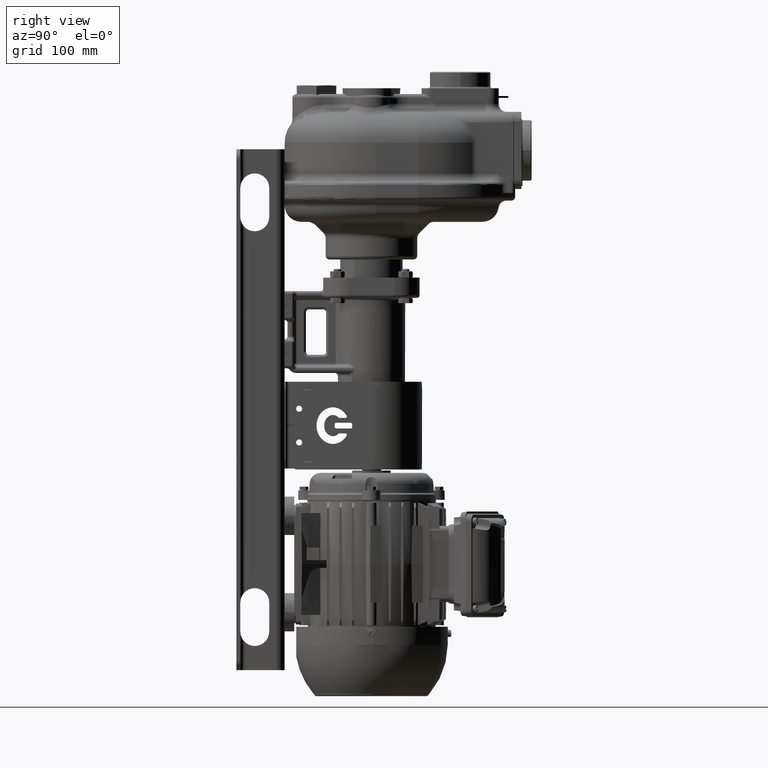
[diagram: clean part render]
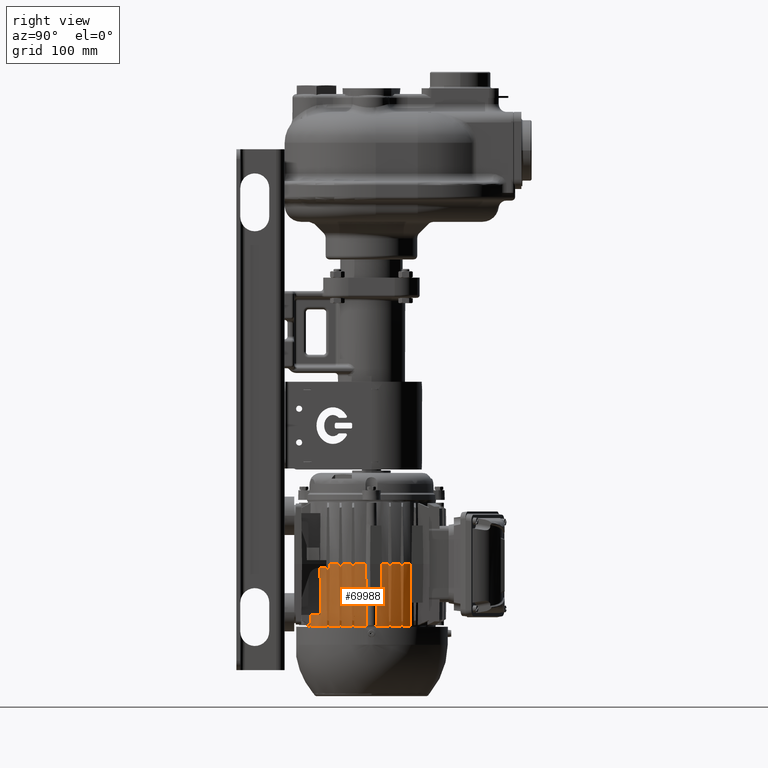
[diagram: same view with one face highlighted and labeled with its STEP entity id]
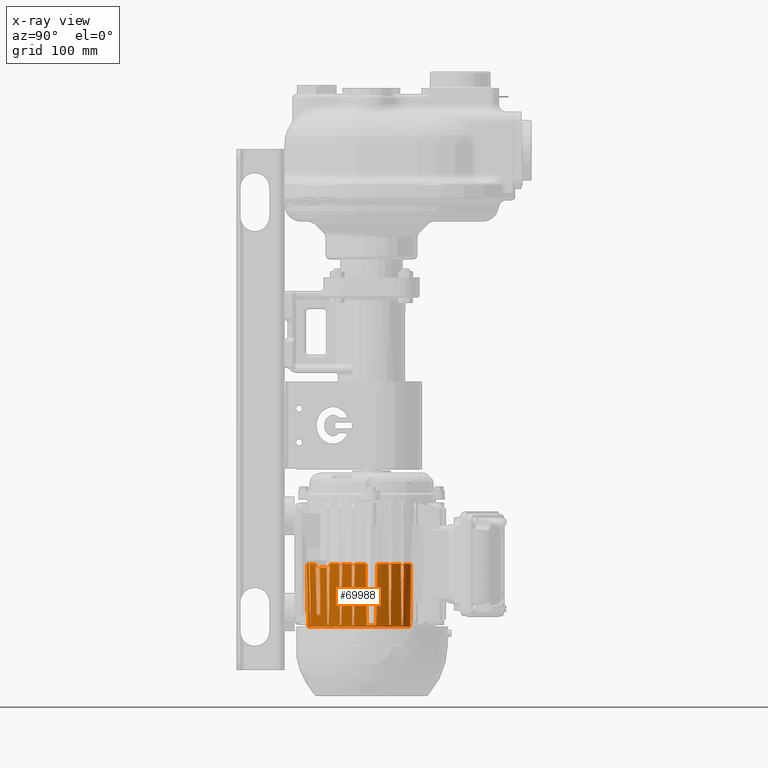
[diagram: x-ray of the same camera — body ghosted, the highlighted face saturated]
A machine part, right view. The second image highlights one B-rep face of the part: STEP entity #69988.
The next image is the same camera in x-ray: the body ghosted, the highlighted face saturated — about 2% of this face is hidden behind the body in this view.
In plain terms, the highlighted conical surface has half-angle 1 deg.
Its self-contained STEP definition (entity closure, byte-faithful):
#9934=CARTESIAN_POINT('',(0.E0,9.E1,-3.2075E2));
#9935=DIRECTION('',(0.E0,0.E0,1.E0));
#9936=DIRECTION('',(5.187048557473E-1,-8.549533745323E-1,0.E0));
#9937=AXIS2_PLACEMENT_3D('',#9934,#9935,#9936);
#9943=CARTESIAN_POINT('',(0.E0,9.E1,-3.315E2));
#9944=DIRECTION('',(0.E0,0.E0,1.E0));
#9945=DIRECTION('',(9.969384629122E-1,-7.819016029039E-2,0.E0));
#9946=AXIS2_PLACEMENT_3D('',#9943,#9944,#9945);
#9948=CARTESIAN_POINT('',(6.628909810208E1,9.547637131661E1,-3.08E2));
#9949=CARTESIAN_POINT('',(6.624598012181E1,9.544202316134E1,-3.106238559003E2));
#9950=CARTESIAN_POINT('',(6.615984119432E1,9.537343808578E1,-3.158630704610E2));
#9951=CARTESIAN_POINT('',(6.603092534715E1,9.527089493119E1,-3.236963429952E2));
#9952=CARTESIAN_POINT('',(6.594517491460E1,9.520275429263E1,-3.289016070095E2));
#9953=CARTESIAN_POINT('',(6.590234830580E1,9.516873946511E1,-3.315E2));
#9955=CARTESIAN_POINT('',(6.667100927619E1,9.851944627858E1,-2.68E2));
#9956=CARTESIAN_POINT('',(6.660276555248E1,9.843550176501E1,-2.724877225495E2));
#9957=CARTESIAN_POINT('',(6.646647636621E1,9.826807434887E1,-2.814343111637E2));
#9958=CARTESIAN_POINT('',(6.626264785405E1,9.801832634453E1,-2.947672700557E2));
#9959=CARTESIAN_POINT('',(6.612715823400E1,9.785274423374E1,-3.035986694015E2));
#9960=CARTESIAN_POINT('',(6.605951419161E1,9.777018370134E1,-3.08E2));
#9962=CARTESIAN_POINT('',(0.E0,9.E1,-2.68E2));
#9963=DIRECTION('',(0.E0,0.E0,-1.E0));
#9964=DIRECTION('',(9.656021840751E-1,2.600238875745E-1,0.E0));
#9965=AXIS2_PLACEMENT_3D('',#9962,#9963,#9964);
#9967=CARTESIAN_POINT('',(6.354351506649E1,1.082224332314E2,-3.315E2));
#9968=CARTESIAN_POINT('',(6.369299634637E1,1.081409662303E2,-3.245545971141E2));
#9969=CARTESIAN_POINT('',(6.399287682552E1,1.079771283590E2,-3.105903742950E2));
#9970=CARTESIAN_POINT('',(6.444539769895E1,1.077286755116E2,-2.894252391550E2));
#9971=CARTESIAN_POINT('',(6.474892545567E1,1.075612078915E2,-2.751663800774E2));
#9972=CARTESIAN_POINT('',(6.490114224180E1,1.074770185818E2,-2.68E2));
#9974=CARTESIAN_POINT('',(6.391372656011E1,1.108E2,-2.68E2));
#9975=CARTESIAN_POINT('',(6.381279082128E1,1.107062621320E2,-2.751606366073E2));
#9976=CARTESIAN_POINT('',(6.361179710924E1,1.105197492050E2,-2.894083608395E2));
#9977=CARTESIAN_POINT('',(6.331695882790E1,1.102465740373E2,-3.102762144472E2));
#9978=CARTESIAN_POINT('',(6.311683462293E1,1.100614418083E2,-3.244184671432E2));
#9979=CARTESIAN_POINT('',(6.301654405037E1,1.099687394651E2,-3.315E2));
#9981=CARTESIAN_POINT('',(0.E0,9.E1,-2.68E2));
#9982=DIRECTION('',(0.E0,0.E0,-1.E0));
#9983=DIRECTION('',(8.933723979381E-1,4.493169912237E-1,0.E0));
#9984=AXIS2_PLACEMENT_3D('',#9981,#9982,#9983);
#9986=CARTESIAN_POINT('',(5.836862384444E1,1.210312605349E2,-3.315E2));
#9987=CARTESIAN_POINT('',(5.855328701157E1,1.209408174765E2,-3.245910539247E2));
#9988=CARTESIAN_POINT('',(5.892379923791E1,1.207586522301E2,-3.106754490556E2));
#9989=CARTESIAN_POINT('',(5.948301094940E1,1.204815949693E2,-2.895110423306E2));
#9990=CARTESIAN_POINT('',(5.985818939452E1,1.202942944860E2,-2.752031566616E2));
#9991=CARTESIAN_POINT('',(6.004635245208E1,1.202E2,-2.68E2));
#9993=CARTESIAN_POINT('',(5.821296841942E1,1.235984337522E2,-2.68E2));
#9994=CARTESIAN_POINT('',(5.812096017601E1,1.235085875067E2,-2.751383381418E2));
#9995=CARTESIAN_POINT('',(5.793760176208E1,1.233295919250E2,-2.893598140621E2));
#9996=CARTESIAN_POINT('',(5.766455236860E1,1.230632014190E2,-3.105254575988E2));
#9997=CARTESIAN_POINT('',(5.748382092459E1,1.228869852205E2,-3.245267782842E2));
#9998=CARTESIAN_POINT('',(5.739378291127E1,1.227992235123E2,-3.315E2));
#10000=CARTESIAN_POINT('',(0.E0,9.E1,-2.68E2));
#10001=DIRECTION('',(0.E0,0.E0,-1.E0));
#10002=DIRECTION('',(7.953107629766E-1,6.062019385432E-1,0.E0));
#10003=AXIS2_PLACEMENT_3D('',#10000,#10001,#10002);
#10005=CARTESIAN_POINT('',(5.253845024705E1,1.300759993508E2,-3.33E2));
#10006=CARTESIAN_POINT('',(5.263952309723E1,1.301497162328E2,
-3.258347057834E2));
#10007=CARTESIAN_POINT('',(5.284220338046E1,1.302975408279E2,
-3.114661681764E2));
#10008=CARTESIAN_POINT('',(5.314782432504E1,1.305204478532E2,
-2.897997434643E2));
#10009=CARTESIAN_POINT('',(5.335264510421E1,1.306698373399E2,
-2.752792563483E2));
#10010=CARTESIAN_POINT('',(5.345532332636E1,1.307447278905E2,-2.68E2));
#10012=CARTESIAN_POINT('',(0.E0,9.E1,-3.33E2));
#10013=DIRECTION('',(0.E0,0.E0,-1.E0));
#10014=DIRECTION('',(7.950908729454E-1,6.064903162944E-1,0.E0));
#10015=AXIS2_PLACEMENT_3D('',#10012,#10013,#10014);
#10017=CARTESIAN_POINT('',(-5.433131284705E1,1.295690900466E2,-2.68E2));
#10018=CARTESIAN_POINT('',(-5.422464598631E1,1.294986267993E2,
-2.753162697599E2));
#10019=CARTESIAN_POINT('',(-5.401222062102E1,1.293583097622E2,
-2.898861008802E2));
#10020=CARTESIAN_POINT('',(-5.369631958381E1,1.291496703320E2,
-3.115519090743E2));
#10021=CARTESIAN_POINT('',(-5.348751990725E1,1.290117857446E2,
-3.258714487920E2));
#10022=CARTESIAN_POINT('',(-5.338357231393E1,1.289431468339E2,-3.33E2));
#10024=CARTESIAN_POINT('',(0.E0,9.E1,-2.68E2));
#10025=DIRECTION('',(0.E0,0.E0,-1.E0));
#10026=DIRECTION('',(-8.643574262411E-1,5.028779570650E-1,0.E0));
#10027=AXIS2_PLACEMENT_3D('',#10024,#10025,#10026);
#10029=CARTESIAN_POINT('',(-5.729657579611E1,1.229687394651E2,-3.315E2));
#10030=CARTESIAN_POINT('',(-5.738447867781E1,1.230600226699E2,
-3.245268751344E2));
#10031=CARTESIAN_POINT('',(-5.756091186255E1,1.232433083081E2,
-3.105256835290E2));
#10032=CARTESIAN_POINT('',(-5.782742986949E1,1.235203818213E2,
-2.893600352781E2));
#10033=CARTESIAN_POINT('',(-5.800637707427E1,1.237065527941E2,
-2.751384329257E2));
#10034=CARTESIAN_POINT('',(-5.809616547415E1,1.238E2,-2.68E2));
#10036=CARTESIAN_POINT('',(0.E0,9.E1,-3.315E2));
#10037=DIRECTION('',(0.E0,0.E0,-1.E0));
#10038=DIRECTION('',(-8.829719673684E-1,4.694257181296E-1,0.E0));
#10039=AXIS2_PLACEMENT_3D('',#10036,#10037,#10038);
#10041=CARTESIAN_POINT('',(-6.004635245208E1,1.202E2,-2.68E2));
#10042=CARTESIAN_POINT('',(-5.985818938151E1,1.202942944925E2,
-2.752031571595E2));
#10043=CARTESIAN_POINT('',(-5.948301091886E1,1.204815949846E2,
-2.895110434922E2));
#10044=CARTESIAN_POINT('',(-5.892379920728E1,1.207586522452E2,
-3.106754502092E2));
#10045=CARTESIAN_POINT('',(-5.855328699836E1,1.209408174829E2,
-3.245910544190E2));
#10046=CARTESIAN_POINT('',(-5.836862384444E1,1.210312605349E2,-3.315E2));
#10048=CARTESIAN_POINT('',(0.E0,9.E1,-2.68E2));
#10049=DIRECTION('',(0.E0,0.E0,-1.E0));
#10050=DIRECTION('',(-9.509113680756E-1,3.094633581938E-1,0.E0));
#10051=AXIS2_PLACEMENT_3D('',#10048,#10049,#10050);
#10053=CARTESIAN_POINT('',(-6.301654405037E1,1.099687394651E2,-3.315E2));
#10054=CARTESIAN_POINT('',(-6.311683718830E1,1.100614441795E2,
-3.244182860021E2));
#10055=CARTESIAN_POINT('',(-6.331696466693E1,1.102465794461E2,
-3.102758012654E2));
#10056=CARTESIAN_POINT('',(-6.361179149489E1,1.105197440022E2,
-2.894087582822E2));
#10057=CARTESIAN_POINT('',(-6.381278836301E1,1.107062598491E2,
-2.751608110033E2));
#10058=CARTESIAN_POINT('',(-6.391372656011E1,1.108E2,-2.68E2));
#10060=CARTESIAN_POINT('',(0.E0,9.E1,-3.315E2));
#10061=DIRECTION('',(0.E0,0.E0,-1.E0));
#10062=DIRECTION('',(-9.620798164991E-1,2.727680822329E-1,0.E0));
#10063=AXIS2_PLACEMENT_3D('',#10060,#10061,#10062);
#10065=CARTESIAN_POINT('',(-6.497510633158E1,1.072E2,-2.68E2));
#10066=CARTESIAN_POINT('',(-6.482074584908E1,1.072938911196E2,
-2.751723435024E2));
#10067=CARTESIAN_POINT('',(-6.451291738496E1,1.074806538794E2,
-2.894391524609E2));
#10068=CARTESIAN_POINT('',(-6.405391294743E1,1.077577192074E2,
-3.106041754432E2));
#10069=CARTESIAN_POINT('',(-6.374968609262E1,1.079404176518E2,
-3.245605113116E2));
#10070=CARTESIAN_POINT('',(-6.359802688292E1,1.080312605349E2,-3.315E2));
#10072=CARTESIAN_POINT('',(0.E0,9.E1,-2.68E2));
#10073=DIRECTION('',(0.E0,0.E0,-1.E0));
#10074=DIRECTION('',(-9.960076178565E-1,8.926827640207E-2,0.E0));
#10075=AXIS2_PLACEMENT_3D('',#10072,#10073,#10074);
#10077=CARTESIAN_POINT('',(-6.590234830580E1,9.516873946511E1,-3.315E2));
#10078=CARTESIAN_POINT('',(-6.601712027063E1,9.525989654472E1,
-3.245365098402E2));
#10079=CARTESIAN_POINT('',(-6.624737018951E1,9.544301398796E1,
-3.105481666461E2));
#10080=CARTESIAN_POINT('',(-6.659483475209E1,9.572008515892E1,
-2.893826973162E2));
#10081=CARTESIAN_POINT('',(-6.682790174238E1,9.590642564116E1,
-2.751481461433E2));
#10082=CARTESIAN_POINT('',(-6.694478652442E1,9.6E1,-2.68E2));
#10084=CARTESIAN_POINT('',(0.E0,9.E1,-3.315E2));
#10085=DIRECTION('',(0.E0,0.E0,1.E0));
#10086=DIRECTION('',(-9.969384629122E-1,7.819016029038E-2,0.E0));
#10087=AXIS2_PLACEMENT_3D('',#10084,#10085,#10086);
#10089=CARTESIAN_POINT('',(-6.694478652442E1,8.4E1,-2.68E2));
#10090=CARTESIAN_POINT('',(-6.682790174097E1,8.409357435997E1,
-2.751481462295E2));
#10091=CARTESIAN_POINT('',(-6.659483474880E1,8.427991484371E1,
-2.893826975173E2));
#10092=CARTESIAN_POINT('',(-6.624737018622E1,8.455698601467E1,
-3.105481668465E2));
#10093=CARTESIAN_POINT('',(-6.601712026922E1,8.474010345641E1,
-3.245365099261E2));
#10094=CARTESIAN_POINT('',(-6.590234830580E1,8.483126053489E1,-3.315E2));
#10096=CARTESIAN_POINT('',(0.E0,9.E1,-2.68E2));
#10097=DIRECTION('',(0.E0,0.E0,-1.E0));
#10098=DIRECTION('',(-9.667026252102E-1,-2.559023923526E-1,0.E0));
#10099=AXIS2_PLACEMENT_3D('',#10096,#10097,#10098);
#10101=CARTESIAN_POINT('',(-6.359802688292E1,7.196873946511E1,-3.315E2));
#10102=CARTESIAN_POINT('',(-6.374968609808E1,7.205958235152E1,
-3.245605110617E2));
#10103=CARTESIAN_POINT('',(-6.405391296012E1,7.224228080028E1,
-3.106041748600E2));
#10104=CARTESIAN_POINT('',(-6.451291739763E1,7.251934612827E1,
-2.894391518748E2));
#10105=CARTESIAN_POINT('',(-6.482074585449E1,7.270610888366E1,
-2.751723432512E2));
#10106=CARTESIAN_POINT('',(-6.497510633158E1,7.28E1,-2.68E2));
#10108=CARTESIAN_POINT('',(-6.391372656011E1,6.92E1,-2.68E2));
#10109=CARTESIAN_POINT('',(-6.381279082128E1,6.929373786798E1,
-2.751606366075E2));
#10110=CARTESIAN_POINT('',(-6.361179710923E1,6.948025079500E1,
-2.894083608398E2));
#10111=CARTESIAN_POINT('',(-6.331695882789E1,6.975342596275E1,
-3.102762144475E2));
#10112=CARTESIAN_POINT('',(-6.311683462293E1,6.993855819173E1,
-3.244184671433E2));
#10113=CARTESIAN_POINT('',(-6.301654405037E1,7.003126053489E1,-3.315E2));
#10115=CARTESIAN_POINT('',(0.E0,9.E1,-2.68E2));
#10116=DIRECTION('',(0.E0,0.E0,-1.E0));
#10117=DIRECTION('',(-8.933723979381E-1,-4.493169912237E-1,0.E0));
#10118=AXIS2_PLACEMENT_3D('',#10115,#10116,#10117);
#10120=CARTESIAN_POINT('',(-5.836862384444E1,5.896873946511E1,-3.315E2));
#10121=CARTESIAN_POINT('',(-5.855328701157E1,5.905918252354E1,
-3.245910539247E2));
#10122=CARTESIAN_POINT('',(-5.892379923791E1,5.924134776995E1,
-3.106754490556E2));
#10123=CARTESIAN_POINT('',(-5.948301094940E1,5.951840503065E1,
-2.895110423306E2));
#10124=CARTESIAN_POINT('',(-5.985818939452E1,5.970570551403E1,
-2.752031566616E2));
#10125=CARTESIAN_POINT('',(-6.004635245208E1,5.98E1,-2.68E2));
#10127=CARTESIAN_POINT('',(-5.809616547415E1,5.62E1,-2.68E2));
#10128=CARTESIAN_POINT('',(-5.800637707408E1,5.629344720606E1,
-2.751384329408E2));
#10129=CARTESIAN_POINT('',(-5.782742986904E1,5.647961817921E1,
-2.893600353133E2));
#10130=CARTESIAN_POINT('',(-5.756091186211E1,5.675669169238E1,
-3.105256835640E2));
#10131=CARTESIAN_POINT('',(-5.738447867762E1,5.693997733027E1,
-3.245268751494E2));
#10132=CARTESIAN_POINT('',(-5.729657579611E1,5.703126053489E1,-3.315E2));
#10134=CARTESIAN_POINT('',(0.E0,9.E1,-2.68E2));
#10135=DIRECTION('',(0.E0,0.E0,-1.E0));
#10136=DIRECTION('',(-7.660914456474E-1,-6.427315900949E-1,0.E0));
#10137=AXIS2_PLACEMENT_3D('',#10134,#10135,#10136);
#10139=CARTESIAN_POINT('',(-4.930601865479E1,4.596873946511E1,-3.315E2));
#10140=CARTESIAN_POINT('',(-4.954598802135E1,4.605825677506E1,
-3.246617718595E2));
#10141=CARTESIAN_POINT('',(-5.002788419636E1,4.623918739568E1,
-3.108404800661E2));
#10142=CARTESIAN_POINT('',(-5.075629206071E1,4.651622116580E1,
-2.896778677867E2));
#10143=CARTESIAN_POINT('',(-5.124575551052E1,4.670476944635E1,
-2.752746628798E2));
#10144=CARTESIAN_POINT('',(-5.149140163950E1,4.68E1,-2.68E2));
#10146=CARTESIAN_POINT('',(-4.819628683111E1,4.325236286834E1,-2.72E2));
#10147=CARTESIAN_POINT('',(-4.811859725514E1,4.333988702680E1,
-2.786859712794E2));
#10148=CARTESIAN_POINT('',(-4.796379338612E1,4.351428188522E1,
-2.920079961384E2));
#10149=CARTESIAN_POINT('',(-4.773332382576E1,4.377390221790E1,
-3.118403957691E2));
#10150=CARTESIAN_POINT('',(-4.758081446614E1,4.394569096210E1,
-3.249633395381E2));
#10151=CARTESIAN_POINT('',(-4.750484577247E1,4.403126053489E1,-3.315E2));
#10153=CARTESIAN_POINT('',(-3.993471731134E1,3.708594720300E1,-3.2075E2));
#10154=CARTESIAN_POINT('',(-4.003250569274E1,3.704242411931E1,
-3.153849217451E2));
#10155=CARTESIAN_POINT('',(-4.022865666647E1,3.695521168358E1,
-3.046203787473E2));
#10156=CARTESIAN_POINT('',(-4.052459600069E1,3.682390067340E1,
-2.883708722574E2));
#10157=CARTESIAN_POINT('',(-4.072304700783E1,3.673602598085E1,
-2.774684715426E2));
#10158=CARTESIAN_POINT('',(-4.082256041567E1,3.669200620161E1,-2.72E2));
#10160=CARTESIAN_POINT('',(-3.418172766224E1,3.212760643602E1,-2.68E2));
#10161=CARTESIAN_POINT('',(-3.420493954397E1,3.226156837997E1,
-2.739318273052E2));
#10162=CARTESIAN_POINT('',(-3.425103163632E1,3.252874294872E1,
-2.857483284979E2));
#10163=CARTESIAN_POINT('',(-3.431917583815E1,3.292723138459E1,
-3.033308726292E2));
#10164=CARTESIAN_POINT('',(-3.436395113756E1,3.319140291314E1,
-3.149592588917E2));
#10165=CARTESIAN_POINT('',(-3.438617543049E1,3.332311256426E1,-3.2075E2));
#10167=CARTESIAN_POINT('',(0.E0,9.E1,-2.68E2));
#10168=DIRECTION('',(0.E0,0.E0,-1.E0));
#10169=DIRECTION('',(-3.094633581938E-1,-9.509113680756E-1,0.E0));
#10170=AXIS2_PLACEMENT_3D('',#10167,#10168,#10169);
#10172=CARTESIAN_POINT('',(-1.996873946511E1,2.698345594963E1,-3.315E2));
#10173=CARTESIAN_POINT('',(-2.006144417955E1,2.688316281169E1,
-3.244182860010E2));
#10174=CARTESIAN_POINT('',(-2.024657944613E1,2.668303533304E1,
-3.102758012629E2));
#10175=CARTESIAN_POINT('',(-2.051974400222E1,2.638820850507E1,
-2.894087582797E2));
#10176=CARTESIAN_POINT('',(-2.070625984907E1,2.618721163698E1,
-2.751608110022E2));
#10177=CARTESIAN_POINT('',(-2.08E1,2.608627343989E1,-2.68E2));
#10179=CARTESIAN_POINT('',(0.E0,9.E1,-3.315E2));
#10180=DIRECTION('',(0.E0,0.E0,-1.E0));
#10181=DIRECTION('',(-2.727680822329E-1,-9.620798164991E-1,0.E0));
#10182=AXIS2_PLACEMENT_3D('',#10179,#10180,#10181);
#10184=CARTESIAN_POINT('',(-1.803126053489E1,2.640197311708E1,-3.315E2));
#10185=CARTESIAN_POINT('',(-1.794041764848E1,2.625031390192E1,
-3.245605110617E2));
#10186=CARTESIAN_POINT('',(-1.775771919973E1,2.594608703988E1,
-3.106041748600E2));
#10187=CARTESIAN_POINT('',(-1.748065387173E1,2.548708260237E1,
-2.894391518748E2));
#10188=CARTESIAN_POINT('',(-1.729389111634E1,2.517925414551E1,
-2.751723432512E2));
#10189=CARTESIAN_POINT('',(-1.72E1,2.502489366842E1,-2.68E2));
#10191=CARTESIAN_POINT('',(0.E0,9.E1,-2.68E2));
#10192=DIRECTION('',(0.E0,0.E0,-1.E0));
#10193=DIRECTION('',(-8.926827640207E-2,-9.960076178565E-1,0.E0));
#10194=AXIS2_PLACEMENT_3D('',#10191,#10192,#10193);
#10196=CARTESIAN_POINT('',(-6.E0,2.305521347558E1,-2.68E2));
#10197=CARTESIAN_POINT('',(-5.906425640028E0,2.317209825903E1,
-2.751481462295E2));
#10198=CARTESIAN_POINT('',(-5.720085156291E0,2.340516525120E1,
-2.893826975173E2));
#10199=CARTESIAN_POINT('',(-5.443013985334E0,2.375262981378E1,
-3.105481668465E2));
#10200=CARTESIAN_POINT('',(-5.259896543594E0,2.398287973078E1,
-3.245365099261E2));
#10201=CARTESIAN_POINT('',(-5.168739465113E0,2.409765169420E1,-3.315E2));
#10203=CARTESIAN_POINT('',(5.168739465113E0,2.409765169420E1,-3.315E2));
#10204=CARTESIAN_POINT('',(5.259896544718E0,2.398287972937E1,
-3.245365098402E2));
#10205=CARTESIAN_POINT('',(5.443013987957E0,2.375262981049E1,
-3.105481666461E2));
#10206=CARTESIAN_POINT('',(5.720085158923E0,2.340516524791E1,
-2.893826973162E2));
#10207=CARTESIAN_POINT('',(5.906425641157E0,2.317209825762E1,
-2.751481461433E2));
#10208=CARTESIAN_POINT('',(6.E0,2.305521347558E1,-2.68E2));
#10210=CARTESIAN_POINT('',(0.E0,9.E1,-2.68E2));
#10211=DIRECTION('',(0.E0,0.E0,-1.E0));
#10212=DIRECTION('',(2.559023923526E-1,-9.667026252102E-1,0.E0));
#10213=AXIS2_PLACEMENT_3D('',#10210,#10211,#10212);
#10215=CARTESIAN_POINT('',(1.72E1,2.502489366842E1,-2.68E2));
#10216=CARTESIAN_POINT('',(1.729389111963E1,2.517925415092E1,
-2.751723435024E2));
#10217=CARTESIAN_POINT('',(1.748065387940E1,2.548708261503E1,
-2.894391524609E2));
#10218=CARTESIAN_POINT('',(1.775771920736E1,2.594608705257E1,
-3.106041754432E2));
#10219=CARTESIAN_POINT('',(1.794041765175E1,2.625031390738E1,
-3.245605113116E2));
#10220=CARTESIAN_POINT('',(1.803126053489E1,2.640197311708E1,-3.315E2));
#10222=CARTESIAN_POINT('',(2.08E1,2.608627343989E1,-2.68E2));
#10223=CARTESIAN_POINT('',(2.070626213204E1,2.618720917871E1,
-2.751606366066E2));
#10224=CARTESIAN_POINT('',(2.051974920502E1,2.638820289074E1,
-2.894083608378E2));
#10225=CARTESIAN_POINT('',(2.024657403728E1,2.668304117208E1,
-3.102762144456E2));
#10226=CARTESIAN_POINT('',(2.006144180828E1,2.688316537706E1,
-3.244184671425E2));
#10227=CARTESIAN_POINT('',(1.996873946511E1,2.698345594963E1,-3.315E2));
#10229=CARTESIAN_POINT('',(0.E0,9.E1,-2.68E2));
#10230=DIRECTION('',(0.E0,0.E0,-1.E0));
#10231=DIRECTION('',(5.085573188089E-1,-8.610281374531E-1,0.E0));
#10232=AXIS2_PLACEMENT_3D('',#10229,#10230,#10231);
#10234=CARTESIAN_POINT('',(3.438617543049E1,3.332311256426E1,-3.2075E2));
#10235=CARTESIAN_POINT('',(3.436395113723E1,3.319140291116E1,
-3.149592588050E2));
#10236=CARTESIAN_POINT('',(3.431917583737E1,3.292723138E1,-3.033308724268E2));
#10237=CARTESIAN_POINT('',(3.425103163553E1,3.252874294413E1,
-2.857483282947E2));
#10238=CARTESIAN_POINT('',(3.420493954363E1,3.226156837800E1,
-2.739318272182E2));
#10239=CARTESIAN_POINT('',(3.418172766224E1,3.212760643602E1,-2.68E2));
#10241=CARTESIAN_POINT('',(4.082256041567E1,3.669200620161E1,-2.72E2));
#10242=CARTESIAN_POINT('',(4.072304700737E1,3.673602598106E1,
-2.774684715681E2));
#10243=CARTESIAN_POINT('',(4.052459599961E1,3.682390067388E1,
-2.883708723169E2));
#10244=CARTESIAN_POINT('',(4.022865666538E1,3.695521168406E1,
-3.046203788067E2));
#10245=CARTESIAN_POINT('',(4.003250569228E1,3.704242411952E1,
-3.153849217705E2));
#10246=CARTESIAN_POINT('',(3.993471731134E1,3.708594720300E1,-3.2075E2));
#10248=CARTESIAN_POINT('',(4.750484577247E1,4.403126053489E1,-3.315E2));
#10249=CARTESIAN_POINT('',(4.758081446615E1,4.394569096209E1,
-3.249633395372E2));
#10250=CARTESIAN_POINT('',(4.773332382578E1,4.377390221787E1,
-3.118403957670E2));
#10251=CARTESIAN_POINT('',(4.796379338614E1,4.351428188519E1,
-2.920079961363E2));
#10252=CARTESIAN_POINT('',(4.811859725515E1,4.333988702678E1,
-2.786859712785E2));
#10253=CARTESIAN_POINT('',(4.819628683111E1,4.325236286834E1,-2.72E2));
#10255=CARTESIAN_POINT('',(0.E0,9.E1,-3.315E2));
#10256=DIRECTION('',(0.E0,0.E0,1.E0));
#10257=DIRECTION('',(7.186300510193E-1,-6.953925867969E-1,0.E0));
#10258=AXIS2_PLACEMENT_3D('',#10255,#10256,#10257);
#10260=CARTESIAN_POINT('',(4.930601865479E1,4.596873946511E1,-3.315E2));
#10261=CARTESIAN_POINT('',(4.954598802135E1,4.605825677506E1,
-3.246617718595E2));
#10262=CARTESIAN_POINT('',(5.002788419636E1,4.623918739568E1,
-3.108404800661E2));
#10263=CARTESIAN_POINT('',(5.075629206071E1,4.651622116580E1,
-2.896778677867E2));
#10264=CARTESIAN_POINT('',(5.124575551052E1,4.670476944635E1,
-2.752746628798E2));
#10265=CARTESIAN_POINT('',(5.149140163950E1,4.68E1,-2.68E2));
#10267=CARTESIAN_POINT('',(0.E0,9.E1,-2.68E2));
#10268=DIRECTION('',(0.E0,0.E0,-1.E0));
#10269=DIRECTION('',(8.643574262411E-1,-5.028779570650E-1,0.E0));
#10270=AXIS2_PLACEMENT_3D('',#10267,#10268,#10269);
#10272=CARTESIAN_POINT('',(5.729657579611E1,5.703126053489E1,-3.315E2));
#10273=CARTESIAN_POINT('',(5.738447867781E1,5.693997733007E1,
-3.245268751344E2));
#10274=CARTESIAN_POINT('',(5.756091186255E1,5.675669169192E1,
-3.105256835290E2));
#10275=CARTESIAN_POINT('',(5.782742986949E1,5.647961817875E1,
-2.893600352781E2));
#10276=CARTESIAN_POINT('',(5.800637707427E1,5.629344720586E1,
-2.751384329257E2));
#10277=CARTESIAN_POINT('',(5.809616547415E1,5.62E1,-2.68E2));
#10279=CARTESIAN_POINT('',(0.E0,9.E1,-3.315E2));
#10280=DIRECTION('',(0.E0,0.E0,-1.E0));
#10281=DIRECTION('',(8.829719673685E-1,-4.694257181296E-1,0.E0));
#10282=AXIS2_PLACEMENT_3D('',#10279,#10280,#10281);
#10284=CARTESIAN_POINT('',(5.836862384444E1,5.896873946511E1,-3.315E2));
#10285=CARTESIAN_POINT('',(5.855328701157E1,5.905918252354E1,
-3.245910539247E2));
#10286=CARTESIAN_POINT('',(5.892379923791E1,5.924134776995E1,
-3.106754490556E2));
#10287=CARTESIAN_POINT('',(5.948301094940E1,5.951840503065E1,
-2.895110423306E2));
#10288=CARTESIAN_POINT('',(5.985818939452E1,5.970570551403E1,
-2.752031566616E2));
#10289=CARTESIAN_POINT('',(6.004635245208E1,5.98E1,-2.68E2));
#10291=CARTESIAN_POINT('',(0.E0,9.E1,-2.68E2));
#10292=DIRECTION('',(0.E0,0.E0,-1.E0));
#10293=DIRECTION('',(9.509113680756E-1,-3.094633581938E-1,0.E0));
#10294=AXIS2_PLACEMENT_3D('',#10291,#10292,#10293);
#10296=CARTESIAN_POINT('',(6.301654405037E1,7.003126053489E1,-3.315E2));
#10297=CARTESIAN_POINT('',(6.311683718831E1,6.993855582046E1,
-3.244182860015E2));
#10298=CARTESIAN_POINT('',(6.331696466695E1,6.975342055388E1,
-3.102758012640E2));
#10299=CARTESIAN_POINT('',(6.361179149491E1,6.948025599779E1,
-2.894087582808E2));
#10300=CARTESIAN_POINT('',(6.381278836302E1,6.929374015093E1,
-2.751608110027E2));
#10301=CARTESIAN_POINT('',(6.391372656011E1,6.92E1,-2.68E2));
#10303=CARTESIAN_POINT('',(0.E0,9.E1,-3.315E2));
#10304=DIRECTION('',(0.E0,0.E0,-1.E0));
#10305=DIRECTION('',(9.620798164991E-1,-2.727680822329E-1,0.E0));
#10306=AXIS2_PLACEMENT_3D('',#10303,#10304,#10305);
#10308=CARTESIAN_POINT('',(6.359802688292E1,7.196873946511E1,-3.315E2));
#10309=CARTESIAN_POINT('',(6.374968609808E1,7.205958235152E1,
-3.245605110617E2));
#10310=CARTESIAN_POINT('',(6.405391296012E1,7.224228080028E1,
-3.106041748600E2));
#10311=CARTESIAN_POINT('',(6.451291739763E1,7.251934612827E1,
-2.894391518748E2));
#10312=CARTESIAN_POINT('',(6.482074585449E1,7.270610888366E1,
-2.751723432512E2));
#10313=CARTESIAN_POINT('',(6.497510633158E1,7.28E1,-2.68E2));
#10315=CARTESIAN_POINT('',(0.E0,9.E1,-2.68E2));
#10316=DIRECTION('',(0.E0,0.E0,-1.E0));
#10317=DIRECTION('',(9.960076178565E-1,-8.926827640206E-2,0.E0));
#10318=AXIS2_PLACEMENT_3D('',#10315,#10316,#10317);
#10320=CARTESIAN_POINT('',(6.694478652442E1,8.4E1,-2.68E2));
#10321=CARTESIAN_POINT('',(6.682790174097E1,8.409357435997E1,
-2.751481462295E2));
#10322=CARTESIAN_POINT('',(6.659483474880E1,8.427991484371E1,
-2.893826975173E2));
#10323=CARTESIAN_POINT('',(6.624737018622E1,8.455698601467E1,
-3.105481668465E2));
#10324=CARTESIAN_POINT('',(6.601712026922E1,8.474010345641E1,
-3.245365099261E2));
#10325=CARTESIAN_POINT('',(6.590234830580E1,8.483126053489E1,-3.315E2));
#10451=CARTESIAN_POINT('',(6.391372656011E1,6.92E1,-2.68E2));
#31926=CARTESIAN_POINT('',(5.739378291127E1,1.227992235123E2,-3.315E2));
#31935=CARTESIAN_POINT('',(0.E0,9.E1,-3.315E2));
#31936=DIRECTION('',(0.E0,0.E0,1.E0));
#31937=DIRECTION('',(8.829719673684E-1,4.694257181296E-1,0.E0));
#31938=AXIS2_PLACEMENT_3D('',#31935,#31936,#31937);
#32037=CARTESIAN_POINT('',(0.E0,9.E1,-3.315E2));
#32038=DIRECTION('',(0.E0,0.E0,1.E0));
#32039=DIRECTION('',(9.612551884262E-1,2.756600491978E-1,0.E0));
#32040=AXIS2_PLACEMENT_3D('',#32037,#32038,#32039);
#32081=CARTESIAN_POINT('',(0.E0,9.E1,-3.08E2));
#32082=DIRECTION('',(0.E0,0.E0,1.E0));
#32083=DIRECTION('',(9.966048775475E-1,8.233297060382E-2,0.E0));
#32084=AXIS2_PLACEMENT_3D('',#32081,#32082,#32083);
#32226=CARTESIAN_POINT('',(6.004635245208E1,5.98E1,-2.68E2));
#32318=CARTESIAN_POINT('',(5.149140163950E1,4.68E1,-2.68E2));
#32528=CARTESIAN_POINT('',(0.E0,9.E1,-2.72E2));
#32529=DIRECTION('',(0.E0,0.E0,1.E0));
#32530=DIRECTION('',(6.079915093543E-1,-7.939435273073E-1,0.E0));
#32531=AXIS2_PLACEMENT_3D('',#32528,#32529,#32530);
#32671=CARTESIAN_POINT('',(0.E0,9.E1,-3.315E2));
#32672=DIRECTION('',(0.E0,0.E0,1.E0));
#32673=DIRECTION('',(2.727680822329E-1,-9.620798164991E-1,0.E0));
#32674=AXIS2_PLACEMENT_3D('',#32671,#32672,#32673);
#32749=CARTESIAN_POINT('',(0.E0,9.E1,-3.315E2));
#32750=DIRECTION('',(0.E0,0.E0,1.E0));
#32751=DIRECTION('',(-7.819016029038E-2,-9.969384629122E-1,0.E0));
#32752=AXIS2_PLACEMENT_3D('',#32749,#32750,#32751);
#32857=CARTESIAN_POINT('',(-3.418172766224E1,3.212760643602E1,-2.68E2));
#33538=CARTESIAN_POINT('',(0.E0,9.E1,-3.2075E2));
#33539=DIRECTION('',(0.E0,0.E0,1.E0));
#33540=DIRECTION('',(-6.024028995070E-1,-7.981921740192E-1,0.E0));
#33541=AXIS2_PLACEMENT_3D('',#33538,#33539,#33540);
#33555=CARTESIAN_POINT('',(0.E0,9.E1,-2.72E2));
#33556=DIRECTION('',(0.E0,0.E0,1.E0));
#33557=DIRECTION('',(-7.178122312110E-1,-6.962367418658E-1,0.E0));
#33558=AXIS2_PLACEMENT_3D('',#33555,#33556,#33557);
#33682=CARTESIAN_POINT('',(-4.750484577247E1,4.403126053489E1,-3.315E2));
#33694=CARTESIAN_POINT('',(0.E0,9.E1,-3.315E2));
#33695=DIRECTION('',(0.E0,0.E0,1.E0));
#33696=DIRECTION('',(-7.458773126253E-1,-6.660833540263E-1,0.E0));
#33697=AXIS2_PLACEMENT_3D('',#33694,#33695,#33696);
#35264=CARTESIAN_POINT('',(-5.729657579611E1,5.703126053489E1,-3.315E2));
#35274=CARTESIAN_POINT('',(0.E0,9.E1,-3.315E2));
#35275=DIRECTION('',(0.E0,0.E0,1.E0));
#35276=DIRECTION('',(-8.829719673685E-1,-4.694257181296E-1,0.E0));
#35277=AXIS2_PLACEMENT_3D('',#35274,#35275,#35276);
#35286=CARTESIAN_POINT('',(-5.836862384444E1,5.896873946511E1,-3.315E2));
#35353=CARTESIAN_POINT('',(-6.301654405037E1,7.003126053489E1,-3.315E2));
#35361=CARTESIAN_POINT('',(0.E0,9.E1,-3.315E2));
#35362=DIRECTION('',(0.E0,0.E0,1.E0));
#35363=DIRECTION('',(-9.620798164991E-1,-2.727680822329E-1,0.E0));
#35364=AXIS2_PLACEMENT_3D('',#35361,#35362,#35363);
#35372=CARTESIAN_POINT('',(-6.359802688292E1,7.196873946511E1,-3.315E2));
#35528=CARTESIAN_POINT('',(-6.359802688292E1,1.080312605349E2,-3.315E2));
#35542=CARTESIAN_POINT('',(-6.301654405037E1,1.099687394651E2,-3.315E2));
#35617=CARTESIAN_POINT('',(-5.836862384444E1,1.210312605349E2,-3.315E2));
#35634=CARTESIAN_POINT('',(-5.729657579611E1,1.229687394651E2,-3.315E2));
#53674=VERTEX_POINT('',#10272);
#53675=VERTEX_POINT('',#10277);
#53676=VERTEX_POINT('',#10320);
#53677=VERTEX_POINT('',#10325);
#53678=VERTEX_POINT('',#10308);
#53679=VERTEX_POINT('',#10313);
#53680=CARTESIAN_POINT('',(6.301654405037E1,7.003126053489E1,-3.315E2));
#53681=VERTEX_POINT('',#53680);
#53682=CARTESIAN_POINT('',(4.750484577247E1,4.403126053489E1,-3.315E2));
#53683=CARTESIAN_POINT('',(4.930601865479E1,4.596873946511E1,-3.315E2));
#53684=VERTEX_POINT('',#53682);
#53685=VERTEX_POINT('',#53683);
#53686=CARTESIAN_POINT('',(1.803126053489E1,2.640197311708E1,-3.315E2));
#53687=CARTESIAN_POINT('',(1.996873946511E1,2.698345594963E1,-3.315E2));
#53688=VERTEX_POINT('',#53686);
#53689=VERTEX_POINT('',#53687);
#53690=VERTEX_POINT('',#10222);
#53691=VERTEX_POINT('',#10215);
#53692=VERTEX_POINT('',#10203);
#53693=VERTEX_POINT('',#10208);
#53694=VERTEX_POINT('',#10196);
#53695=VERTEX_POINT('',#10201);
#53696=VERTEX_POINT('',#10172);
#53697=VERTEX_POINT('',#10177);
#53698=CARTESIAN_POINT('',(-1.803126053489E1,2.640197311708E1,-3.315E2));
#53699=VERTEX_POINT('',#53698);
#53700=VERTEX_POINT('',#10189);
#53702=VERTEX_POINT('',#32318);
#53712=VERTEX_POINT('',#32226);
#53716=VERTEX_POINT('',#10451);
#53722=VERTEX_POINT('',#10284);
#53813=CARTESIAN_POINT('',(6.590234830580E1,9.516873946511E1,-3.315E2));
#53815=VERTEX_POINT('',#53813);
#55423=VERTEX_POINT('',#9986);
#55424=VERTEX_POINT('',#9991);
#55434=CARTESIAN_POINT('',(5.821296841942E1,1.235984337522E2,-2.68E2));
#55436=VERTEX_POINT('',#55434);
#55468=VERTEX_POINT('',#35286);
#55474=CARTESIAN_POINT('',(-6.391372656011E1,6.92E1,-2.68E2));
#55475=VERTEX_POINT('',#55474);
#55477=VERTEX_POINT('',#35353);
#55478=VERTEX_POINT('',#35372);
#55484=CARTESIAN_POINT('',(-6.004635245208E1,5.98E1,-2.68E2));
#55485=VERTEX_POINT('',#55484);
#55486=VERTEX_POINT('',#35264);
#55487=CARTESIAN_POINT('',(-5.809616547415E1,5.62E1,-2.68E2));
#55488=VERTEX_POINT('',#55487);
#55504=CARTESIAN_POINT('',(-6.694478652442E1,9.6E1,-2.68E2));
#55505=VERTEX_POINT('',#55504);
#55508=CARTESIAN_POINT('',(-6.694478652442E1,8.4E1,-2.68E2));
#55509=VERTEX_POINT('',#55508);
#55521=CARTESIAN_POINT('',(-6.590234830580E1,8.483126053489E1,-3.315E2));
#55522=VERTEX_POINT('',#55521);
#55523=CARTESIAN_POINT('',(-6.497510633158E1,7.28E1,-2.68E2));
#55524=VERTEX_POINT('',#55523);
#55525=CARTESIAN_POINT('',(-6.590234830580E1,9.516873946511E1,-3.315E2));
#55526=VERTEX_POINT('',#55525);
#55529=VERTEX_POINT('',#35634);
#55536=VERTEX_POINT('',#35528);
#55538=VERTEX_POINT('',#35542);
#55539=CARTESIAN_POINT('',(-6.497510633158E1,1.072E2,-2.68E2));
#55540=VERTEX_POINT('',#55539);
#55541=CARTESIAN_POINT('',(-5.809616547415E1,1.238E2,-2.68E2));
#55542=VERTEX_POINT('',#55541);
#55543=CARTESIAN_POINT('',(-6.391372656011E1,1.108E2,-2.68E2));
#55544=VERTEX_POINT('',#55543);
#55550=VERTEX_POINT('',#35617);
#55553=CARTESIAN_POINT('',(-6.004635245208E1,1.202E2,-2.68E2));
#55554=VERTEX_POINT('',#55553);
#55576=VERTEX_POINT('',#10253);
#55577=CARTESIAN_POINT('',(4.082256041567E1,3.669200620161E1,-2.72E2));
#55578=VERTEX_POINT('',#55577);
#55579=VERTEX_POINT('',#10246);
#55580=CARTESIAN_POINT('',(3.438617543049E1,3.332311256426E1,-3.2075E2));
#55581=VERTEX_POINT('',#55580);
#55582=VERTEX_POINT('',#10239);
#55585=CARTESIAN_POINT('',(5.345532332636E1,1.307447278905E2,-2.68E2));
#55586=VERTEX_POINT('',#55585);
#55609=VERTEX_POINT('',#9955);
#55610=VERTEX_POINT('',#9960);
#55611=CARTESIAN_POINT('',(6.628909810208E1,9.547637131661E1,-3.08E2));
#55612=VERTEX_POINT('',#55611);
#55705=VERTEX_POINT('',#33682);
#55707=CARTESIAN_POINT('',(-4.819628683111E1,4.325236286834E1,-2.72E2));
#55708=VERTEX_POINT('',#55707);
#55710=CARTESIAN_POINT('',(-3.993471731134E1,3.708594720300E1,-3.2075E2));
#55712=VERTEX_POINT('',#55710);
#55731=CARTESIAN_POINT('',(-4.082256041567E1,3.669200620161E1,-2.72E2));
#55732=VERTEX_POINT('',#55731);
#55868=CARTESIAN_POINT('',(6.490114224180E1,1.074770185818E2,-2.68E2));
#55869=VERTEX_POINT('',#55868);
#55870=CARTESIAN_POINT('',(6.391372656011E1,1.108E2,-2.68E2));
#55871=VERTEX_POINT('',#55870);
#55876=VERTEX_POINT('',#32857);
#55878=CARTESIAN_POINT('',(-5.149140163950E1,4.68E1,-2.68E2));
#55879=VERTEX_POINT('',#55878);
#55886=CARTESIAN_POINT('',(-5.433131284705E1,1.295690900466E2,-2.68E2));
#55887=VERTEX_POINT('',#55886);
#55888=VERTEX_POINT('',#10139);
#55889=VERTEX_POINT('',#10165);
#56010=CARTESIAN_POINT('',(6.354351506649E1,1.082224332314E2,-3.315E2));
#56011=CARTESIAN_POINT('',(6.301654405037E1,1.099687394651E2,-3.315E2));
#56012=VERTEX_POINT('',#56010);
#56013=VERTEX_POINT('',#56011);
#56021=VERTEX_POINT('',#31926);
#56263=CARTESIAN_POINT('',(5.253845024705E1,1.300759993508E2,-3.33E2));
#56265=VERTEX_POINT('',#56263);
#56269=CARTESIAN_POINT('',(-5.338357231393E1,1.289431468339E2,-3.33E2));
#56270=VERTEX_POINT('',#56269);
#69836=CARTESIAN_POINT('',(0.E0,9.E1,-3.005E2));
#69837=DIRECTION('',(0.E0,0.E0,1.E0));
#69838=DIRECTION('',(1.E0,0.E0,0.E0));
#69839=AXIS2_PLACEMENT_3D('',#69836,#69837,#69838);
#69840=CONICAL_SURFACE('',#69839,6.664583740234E1,1.E0);
#69842=ORIENTED_EDGE('',*,*,#69841,.T.);
#69844=ORIENTED_EDGE('',*,*,#69843,.F.);
#69846=ORIENTED_EDGE('',*,*,#69845,.T.);
#69848=ORIENTED_EDGE('',*,*,#69847,.F.);
#69850=ORIENTED_EDGE('',*,*,#69849,.F.);
#69852=ORIENTED_EDGE('',*,*,#69851,.F.);
#69854=ORIENTED_EDGE('',*,*,#69853,.T.);
#69856=ORIENTED_EDGE('',*,*,#69855,.F.);
#69858=ORIENTED_EDGE('',*,*,#69857,.F.);
#69860=ORIENTED_EDGE('',*,*,#69859,.F.);
#69862=ORIENTED_EDGE('',*,*,#69861,.T.);
#69864=ORIENTED_EDGE('',*,*,#69863,.F.);
#69866=ORIENTED_EDGE('',*,*,#69865,.F.);
#69868=ORIENTED_EDGE('',*,*,#69867,.F.);
#69870=ORIENTED_EDGE('',*,*,#69869,.T.);
#69872=ORIENTED_EDGE('',*,*,#69871,.F.);
#69874=ORIENTED_EDGE('',*,*,#69873,.F.);
#69876=ORIENTED_EDGE('',*,*,#69875,.F.);
#69878=ORIENTED_EDGE('',*,*,#69877,.F.);
#69880=ORIENTED_EDGE('',*,*,#69879,.F.);
#69882=ORIENTED_EDGE('',*,*,#69881,.F.);
#69884=ORIENTED_EDGE('',*,*,#69883,.F.);
#69886=ORIENTED_EDGE('',*,*,#69885,.F.);
#69888=ORIENTED_EDGE('',*,*,#69887,.F.);
#69890=ORIENTED_EDGE('',*,*,#69889,.F.);
#69892=ORIENTED_EDGE('',*,*,#69891,.F.);
#69894=ORIENTED_EDGE('',*,*,#69893,.T.);
#69896=ORIENTED_EDGE('',*,*,#69895,.F.);
#69898=ORIENTED_EDGE('',*,*,#69897,.F.);
#69900=ORIENTED_EDGE('',*,*,#69899,.F.);
#69902=ORIENTED_EDGE('',*,*,#69901,.T.);
#69904=ORIENTED_EDGE('',*,*,#69903,.F.);
#69906=ORIENTED_EDGE('',*,*,#69905,.F.);
#69908=ORIENTED_EDGE('',*,*,#69907,.F.);
#69910=ORIENTED_EDGE('',*,*,#69909,.T.);
#69912=ORIENTED_EDGE('',*,*,#69911,.F.);
#69914=ORIENTED_EDGE('',*,*,#69913,.F.);
#69916=ORIENTED_EDGE('',*,*,#69915,.F.);
#69918=ORIENTED_EDGE('',*,*,#69917,.T.);
#69920=ORIENTED_EDGE('',*,*,#69919,.F.);
#69922=ORIENTED_EDGE('',*,*,#69921,.T.);
#69924=ORIENTED_EDGE('',*,*,#69923,.F.);
#69926=ORIENTED_EDGE('',*,*,#69925,.T.);
#69928=ORIENTED_EDGE('',*,*,#69927,.F.);
#69930=ORIENTED_EDGE('',*,*,#69929,.F.);
#69932=ORIENTED_EDGE('',*,*,#69931,.F.);
#69934=ORIENTED_EDGE('',*,*,#69933,.F.);
#69936=ORIENTED_EDGE('',*,*,#69935,.T.);
#69938=ORIENTED_EDGE('',*,*,#69937,.F.);
#69940=ORIENTED_EDGE('',*,*,#69939,.T.);
#69942=ORIENTED_EDGE('',*,*,#69941,.T.);
#69944=ORIENTED_EDGE('',*,*,#69943,.T.);
#69946=ORIENTED_EDGE('',*,*,#69945,.F.);
#69948=ORIENTED_EDGE('',*,*,#69947,.T.);
#69950=ORIENTED_EDGE('',*,*,#69949,.T.);
#69952=ORIENTED_EDGE('',*,*,#69951,.F.);
#69954=ORIENTED_EDGE('',*,*,#69953,.F.);
#69955=ORIENTED_EDGE('',*,*,#69799,.F.);
#69956=ORIENTED_EDGE('',*,*,#69817,.T.);
#69957=ORIENTED_EDGE('',*,*,#69827,.F.);
#69959=ORIENTED_EDGE('',*,*,#69958,.T.);
#69961=ORIENTED_EDGE('',*,*,#69960,.F.);
#69963=ORIENTED_EDGE('',*,*,#69962,.T.);
#69965=ORIENTED_EDGE('',*,*,#69964,.T.);
#69967=ORIENTED_EDGE('',*,*,#69966,.F.);
#69969=ORIENTED_EDGE('',*,*,#69968,.F.);
#69971=ORIENTED_EDGE('',*,*,#69970,.F.);
#69973=ORIENTED_EDGE('',*,*,#69972,.T.);
#69975=ORIENTED_EDGE('',*,*,#69974,.F.);
#69977=ORIENTED_EDGE('',*,*,#69976,.F.);
#69979=ORIENTED_EDGE('',*,*,#69978,.F.);
#69981=ORIENTED_EDGE('',*,*,#69980,.T.);
#69983=ORIENTED_EDGE('',*,*,#69982,.F.);
#69985=ORIENTED_EDGE('',*,*,#69984,.T.);
#69986=EDGE_LOOP('',(#69842,#69844,#69846,#69848,#69850,#69852,#69854,#69856,
#69858,#69860,#69862,#69864,#69866,#69868,#69870,#69872,#69874,#69876,#69878,
#69880,#69882,#69884,#69886,#69888,#69890,#69892,#69894,#69896,#69898,#69900,
#69902,#69904,#69906,#69908,#69910,#69912,#69914,#69916,#69918,#69920,#69922,
#69924,#69926,#69928,#69930,#69932,#69934,#69936,#69938,#69940,#69942,#69944,
#69946,#69948,#69950,#69952,#69954,#69955,#69956,#69957,#69959,#69961,#69963,
#69965,#69967,#69969,#69971,#69973,#69975,#69977,#69979,#69981,#69983,#69985));
#69987=FACE_OUTER_BOUND('',#69986,.F.);
#69988=ADVANCED_FACE('',(#69987),#69840,.T.);
#9938=CIRCLE('',#9937,6.629237233755E1);
#9947=CIRCLE('',#9946,6.610473038957E1);
#9954=B_SPLINE_CURVE_WITH_KNOTS('',3,(#9948,#9949,#9950,#9951,#9952,#9953),
.UNSPECIFIED.,.F.,.F.,(4,1,1,4),(0.E0,3.333333333333E-1,6.666666666667E-1,1.E0),
.UNSPECIFIED.);
#9961=B_SPLINE_CURVE_WITH_KNOTS('',3,(#9955,#9956,#9957,#9958,#9959,#9960),
.UNSPECIFIED.,.F.,.F.,(4,1,1,4),(0.E0,3.333333333333E-1,6.666666666667E-1,1.E0),
.UNSPECIFIED.);
#9966=CIRCLE('',#9965,6.721312701251E1);
#9973=B_SPLINE_CURVE_WITH_KNOTS('',3,(#9967,#9968,#9969,#9970,#9971,#9972),
.UNSPECIFIED.,.F.,.F.,(4,1,1,4),(0.E0,3.333333333333E-1,6.666666666667E-1,1.E0),
.UNSPECIFIED.);
#9980=B_SPLINE_CURVE_WITH_KNOTS('',3,(#9974,#9975,#9976,#9977,#9978,#9979),
.UNSPECIFIED.,.F.,.F.,(4,1,1,4),(0.E0,3.333333333333E-1,6.666666666667E-1,1.E0),
.UNSPECIFIED.);
#9985=CIRCLE('',#9984,6.721312701251E1);
#9992=B_SPLINE_CURVE_WITH_KNOTS('',3,(#9986,#9987,#9988,#9989,#9990,#9991),
.UNSPECIFIED.,.F.,.F.,(4,1,1,4),(0.E0,3.333333333333E-1,6.666666666667E-1,1.E0),
.UNSPECIFIED.);
#9999=B_SPLINE_CURVE_WITH_KNOTS('',3,(#9993,#9994,#9995,#9996,#9997,#9998),
.UNSPECIFIED.,.F.,.F.,(4,1,1,4),(0.E0,3.333333333333E-1,6.666666666667E-1,1.E0),
.UNSPECIFIED.);
#10004=CIRCLE('',#10003,6.721312701251E1);
#10011=B_SPLINE_CURVE_WITH_KNOTS('',3,(#10005,#10006,#10007,#10008,#10009,
#10010),.UNSPECIFIED.,.F.,.F.,(4,1,1,4),(0.E0,3.333333333333E-1,
6.666666666667E-1,1.E0),.UNSPECIFIED.);
#10016=CIRCLE('',#10015,6.607854779218E1);
#10023=B_SPLINE_CURVE_WITH_KNOTS('',3,(#10017,#10018,#10019,#10020,#10021,
#10022),.UNSPECIFIED.,.F.,.F.,(4,1,1,4),(0.E0,3.333333333333E-1,
6.666666666667E-1,1.E0),.UNSPECIFIED.);
#10028=CIRCLE('',#10027,6.721312701251E1);
#10035=B_SPLINE_CURVE_WITH_KNOTS('',3,(#10029,#10030,#10031,#10032,#10033,
#10034),.UNSPECIFIED.,.F.,.F.,(4,1,1,4),(0.E0,3.333333333333E-1,
6.666666666667E-1,1.E0),.UNSPECIFIED.);
#10040=CIRCLE('',#10039,6.610473038957E1);
#10047=B_SPLINE_CURVE_WITH_KNOTS('',3,(#10041,#10042,#10043,#10044,#10045,
#10046),.UNSPECIFIED.,.F.,.F.,(4,1,1,4),(0.E0,3.333333333333E-1,
6.666666666667E-1,1.E0),.UNSPECIFIED.);
#10052=CIRCLE('',#10051,6.721312701251E1);
#10059=B_SPLINE_CURVE_WITH_KNOTS('',3,(#10053,#10054,#10055,#10056,#10057,
#10058),.UNSPECIFIED.,.F.,.F.,(4,1,1,4),(0.E0,3.333333333333E-1,
6.666666666667E-1,1.E0),.UNSPECIFIED.);
#10064=CIRCLE('',#10063,6.610473038957E1);
#10071=B_SPLINE_CURVE_WITH_KNOTS('',3,(#10065,#10066,#10067,#10068,#10069,
#10070),.UNSPECIFIED.,.F.,.F.,(4,1,1,4),(0.E0,3.333333333333E-1,
6.666666666667E-1,1.E0),.UNSPECIFIED.);
#10076=CIRCLE('',#10075,6.721312701251E1);
#10083=B_SPLINE_CURVE_WITH_KNOTS('',3,(#10077,#10078,#10079,#10080,#10081,
#10082),.UNSPECIFIED.,.F.,.F.,(4,1,1,4),(0.E0,3.333333333333E-1,
6.666666666667E-1,1.E0),.UNSPECIFIED.);
#10088=CIRCLE('',#10087,6.610473038957E1);
#10095=B_SPLINE_CURVE_WITH_KNOTS('',3,(#10089,#10090,#10091,#10092,#10093,
#10094),.UNSPECIFIED.,.F.,.F.,(4,1,1,4),(0.E0,3.333333333333E-1,
6.666666666667E-1,1.E0),.UNSPECIFIED.);
#10100=CIRCLE('',#10099,6.721312701251E1);
#10107=B_SPLINE_CURVE_WITH_KNOTS('',3,(#10101,#10102,#10103,#10104,#10105,
#10106),.UNSPECIFIED.,.F.,.F.,(4,1,1,4),(0.E0,3.333333333333E-1,
6.666666666667E-1,1.E0),.UNSPECIFIED.);
#10114=B_SPLINE_CURVE_WITH_KNOTS('',3,(#10108,#10109,#10110,#10111,#10112,
#10113),.UNSPECIFIED.,.F.,.F.,(4,1,1,4),(0.E0,3.333333333333E-1,
6.666666666667E-1,1.E0),.UNSPECIFIED.);
#10119=CIRCLE('',#10118,6.721312701251E1);
#10126=B_SPLINE_CURVE_WITH_KNOTS('',3,(#10120,#10121,#10122,#10123,#10124,
#10125),.UNSPECIFIED.,.F.,.F.,(4,1,1,4),(0.E0,3.333333333333E-1,
6.666666666667E-1,1.E0),.UNSPECIFIED.);
#10133=B_SPLINE_CURVE_WITH_KNOTS('',3,(#10127,#10128,#10129,#10130,#10131,
#10132),.UNSPECIFIED.,.F.,.F.,(4,1,1,4),(0.E0,3.333333333333E-1,
6.666666666667E-1,1.E0),.UNSPECIFIED.);
#10138=CIRCLE('',#10137,6.721312701251E1);
#10145=B_SPLINE_CURVE_WITH_KNOTS('',3,(#10139,#10140,#10141,#10142,#10143,
#10144),.UNSPECIFIED.,.F.,.F.,(4,1,1,4),(0.E0,3.333333333333E-1,
6.666666666667E-1,1.E0),.UNSPECIFIED.);
#10152=B_SPLINE_CURVE_WITH_KNOTS('',3,(#10146,#10147,#10148,#10149,#10150,
#10151),.UNSPECIFIED.,.F.,.F.,(4,1,1,4),(0.E0,3.333333333333E-1,
6.666666666667E-1,1.E0),.UNSPECIFIED.);
#10159=B_SPLINE_CURVE_WITH_KNOTS('',3,(#10153,#10154,#10155,#10156,#10157,
#10158),.UNSPECIFIED.,.F.,.F.,(4,1,1,4),(0.E0,3.333333333333E-1,
6.666666666667E-1,1.E0),.UNSPECIFIED.);
#10166=B_SPLINE_CURVE_WITH_KNOTS('',3,(#10160,#10161,#10162,#10163,#10164,
#10165),.UNSPECIFIED.,.F.,.F.,(4,1,1,4),(0.E0,3.333333333333E-1,
6.666666666667E-1,1.E0),.UNSPECIFIED.);
#10171=CIRCLE('',#10170,6.721312701251E1);
#10178=B_SPLINE_CURVE_WITH_KNOTS('',3,(#10172,#10173,#10174,#10175,#10176,
#10177),.UNSPECIFIED.,.F.,.F.,(4,1,1,4),(0.E0,3.333333333333E-1,
6.666666666667E-1,1.E0),.UNSPECIFIED.);
#10183=CIRCLE('',#10182,6.610473038957E1);
#10190=B_SPLINE_CURVE_WITH_KNOTS('',3,(#10184,#10185,#10186,#10187,#10188,
#10189),.UNSPECIFIED.,.F.,.F.,(4,1,1,4),(0.E0,3.333333333333E-1,
6.666666666667E-1,1.E0),.UNSPECIFIED.);
#10195=CIRCLE('',#10194,6.721312701251E1);
#10202=B_SPLINE_CURVE_WITH_KNOTS('',3,(#10196,#10197,#10198,#10199,#10200,
#10201),.UNSPECIFIED.,.F.,.F.,(4,1,1,4),(0.E0,3.333333333333E-1,
6.666666666667E-1,1.E0),.UNSPECIFIED.);
#10209=B_SPLINE_CURVE_WITH_KNOTS('',3,(#10203,#10204,#10205,#10206,#10207,
#10208),.UNSPECIFIED.,.F.,.F.,(4,1,1,4),(0.E0,3.333333333333E-1,
6.666666666667E-1,1.E0),.UNSPECIFIED.);
#10214=CIRCLE('',#10213,6.721312701251E1);
#10221=B_SPLINE_CURVE_WITH_KNOTS('',3,(#10215,#10216,#10217,#10218,#10219,
#10220),.UNSPECIFIED.,.F.,.F.,(4,1,1,4),(0.E0,3.333333333333E-1,
6.666666666667E-1,1.E0),.UNSPECIFIED.);
#10228=B_SPLINE_CURVE_WITH_KNOTS('',3,(#10222,#10223,#10224,#10225,#10226,
#10227),.UNSPECIFIED.,.F.,.F.,(4,1,1,4),(0.E0,3.333333333333E-1,
6.666666666667E-1,1.E0),.UNSPECIFIED.);
#10233=CIRCLE('',#10232,6.721312701251E1);
#10240=B_SPLINE_CURVE_WITH_KNOTS('',3,(#10234,#10235,#10236,#10237,#10238,
#10239),.UNSPECIFIED.,.F.,.F.,(4,1,1,4),(0.E0,3.333333333333E-1,
6.666666666667E-1,1.E0),.UNSPECIFIED.);
#10247=B_SPLINE_CURVE_WITH_KNOTS('',3,(#10241,#10242,#10243,#10244,#10245,
#10246),.UNSPECIFIED.,.F.,.F.,(4,1,1,4),(0.E0,3.333333333333E-1,
6.666666666667E-1,1.E0),.UNSPECIFIED.);
#10254=B_SPLINE_CURVE_WITH_KNOTS('',3,(#10248,#10249,#10250,#10251,#10252,
#10253),.UNSPECIFIED.,.F.,.F.,(4,1,1,4),(0.E0,3.333333333333E-1,
6.666666666667E-1,1.E0),.UNSPECIFIED.);
#10259=CIRCLE('',#10258,6.610473038957E1);
#10266=B_SPLINE_CURVE_WITH_KNOTS('',3,(#10260,#10261,#10262,#10263,#10264,
#10265),.UNSPECIFIED.,.F.,.F.,(4,1,1,4),(0.E0,3.333333333333E-1,
6.666666666667E-1,1.E0),.UNSPECIFIED.);
#10271=CIRCLE('',#10270,6.721312701251E1);
#10278=B_SPLINE_CURVE_WITH_KNOTS('',3,(#10272,#10273,#10274,#10275,#10276,
#10277),.UNSPECIFIED.,.F.,.F.,(4,1,1,4),(0.E0,3.333333333333E-1,
6.666666666667E-1,1.E0),.UNSPECIFIED.);
#10283=CIRCLE('',#10282,6.610473038957E1);
#10290=B_SPLINE_CURVE_WITH_KNOTS('',3,(#10284,#10285,#10286,#10287,#10288,
#10289),.UNSPECIFIED.,.F.,.F.,(4,1,1,4),(0.E0,3.333333333333E-1,
6.666666666667E-1,1.E0),.UNSPECIFIED.);
#10295=CIRCLE('',#10294,6.721312701251E1);
#10302=B_SPLINE_CURVE_WITH_KNOTS('',3,(#10296,#10297,#10298,#10299,#10300,
#10301),.UNSPECIFIED.,.F.,.F.,(4,1,1,4),(0.E0,3.333333333333E-1,
6.666666666667E-1,1.E0),.UNSPECIFIED.);
#10307=CIRCLE('',#10306,6.610473038957E1);
#10314=B_SPLINE_CURVE_WITH_KNOTS('',3,(#10308,#10309,#10310,#10311,#10312,
#10313),.UNSPECIFIED.,.F.,.F.,(4,1,1,4),(0.E0,3.333333333333E-1,
6.666666666667E-1,1.E0),.UNSPECIFIED.);
#10319=CIRCLE('',#10318,6.721312701251E1);
#10326=B_SPLINE_CURVE_WITH_KNOTS('',3,(#10320,#10321,#10322,#10323,#10324,
#10325),.UNSPECIFIED.,.F.,.F.,(4,1,1,4),(0.E0,3.333333333333E-1,
6.666666666667E-1,1.E0),.UNSPECIFIED.);
#31939=CIRCLE('',#31938,6.610473038957E1);
#32041=CIRCLE('',#32040,6.610473038957E1);
#32085=CIRCLE('',#32084,6.651492441538E1);
#32532=CIRCLE('',#32531,6.714330675280E1);
#32675=CIRCLE('',#32674,6.610473038957E1);
#32753=CIRCLE('',#32752,6.610473038957E1);
#33542=CIRCLE('',#33541,6.629237233755E1);
#33559=CIRCLE('',#33558,6.714330675280E1);
#33698=CIRCLE('',#33697,6.610473038957E1);
#35278=CIRCLE('',#35277,6.610473038957E1);
#35365=CIRCLE('',#35364,6.610473038957E1);
#69799=EDGE_CURVE('',#55581,#55582,#10240,.T.);
#69817=EDGE_CURVE('',#55581,#55579,#9938,.T.);
#69827=EDGE_CURVE('',#55578,#55579,#10247,.T.);
#69841=EDGE_CURVE('',#53677,#53815,#9947,.T.);
#69843=EDGE_CURVE('',#55612,#53815,#9954,.T.);
#69845=EDGE_CURVE('',#55612,#55610,#32085,.T.);
#69847=EDGE_CURVE('',#55609,#55610,#9961,.T.);
#69849=EDGE_CURVE('',#55869,#55609,#9966,.T.);
#69851=EDGE_CURVE('',#56012,#55869,#9973,.T.);
#69853=EDGE_CURVE('',#56012,#56013,#32041,.T.);
#69855=EDGE_CURVE('',#55871,#56013,#9980,.T.);
#69857=EDGE_CURVE('',#55424,#55871,#9985,.T.);
#69859=EDGE_CURVE('',#55423,#55424,#9992,.T.);
#69861=EDGE_CURVE('',#55423,#56021,#31939,.T.);
#69863=EDGE_CURVE('',#55436,#56021,#9999,.T.);
#69865=EDGE_CURVE('',#55586,#55436,#10004,.T.);
#69867=EDGE_CURVE('',#56265,#55586,#10011,.T.);
#69869=EDGE_CURVE('',#56265,#56270,#10016,.T.);
#69871=EDGE_CURVE('',#55887,#56270,#10023,.T.);
#69873=EDGE_CURVE('',#55542,#55887,#10028,.T.);
#69875=EDGE_CURVE('',#55529,#55542,#10035,.T.);
#69877=EDGE_CURVE('',#55550,#55529,#10040,.T.);
#69879=EDGE_CURVE('',#55554,#55550,#10047,.T.);
#69881=EDGE_CURVE('',#55544,#55554,#10052,.T.);
#69883=EDGE_CURVE('',#55538,#55544,#10059,.T.);
#69885=EDGE_CURVE('',#55536,#55538,#10064,.T.);
#69887=EDGE_CURVE('',#55540,#55536,#10071,.T.);
#69889=EDGE_CURVE('',#55505,#55540,#10076,.T.);
#69891=EDGE_CURVE('',#55526,#55505,#10083,.T.);
#69893=EDGE_CURVE('',#55526,#55522,#10088,.T.);
#69895=EDGE_CURVE('',#55509,#55522,#10095,.T.);
#69897=EDGE_CURVE('',#55524,#55509,#10100,.T.);
#69899=EDGE_CURVE('',#55478,#55524,#10107,.T.);
#69901=EDGE_CURVE('',#55478,#55477,#35365,.T.);
#69903=EDGE_CURVE('',#55475,#55477,#10114,.T.);
#69905=EDGE_CURVE('',#55485,#55475,#10119,.T.);
#69907=EDGE_CURVE('',#55468,#55485,#10126,.T.);
#69909=EDGE_CURVE('',#55468,#55486,#35278,.T.);
#69911=EDGE_CURVE('',#55488,#55486,#10133,.T.);
#69913=EDGE_CURVE('',#55879,#55488,#10138,.T.);
#69915=EDGE_CURVE('',#55888,#55879,#10145,.T.);
#69917=EDGE_CURVE('',#55888,#55705,#33698,.T.);
#69919=EDGE_CURVE('',#55708,#55705,#10152,.T.);
#69921=EDGE_CURVE('',#55708,#55732,#33559,.T.);
#69923=EDGE_CURVE('',#55712,#55732,#10159,.T.);
#69925=EDGE_CURVE('',#55712,#55889,#33542,.T.);
#69927=EDGE_CURVE('',#55876,#55889,#10166,.T.);
#69929=EDGE_CURVE('',#53697,#55876,#10171,.T.);
#69931=EDGE_CURVE('',#53696,#53697,#10178,.T.);
#69933=EDGE_CURVE('',#53699,#53696,#10183,.T.);
#69935=EDGE_CURVE('',#53699,#53700,#10190,.T.);
#69937=EDGE_CURVE('',#53694,#53700,#10195,.T.);
#69939=EDGE_CURVE('',#53694,#53695,#10202,.T.);
#69941=EDGE_CURVE('',#53695,#53692,#32753,.T.);
#69943=EDGE_CURVE('',#53692,#53693,#10209,.T.);
#69945=EDGE_CURVE('',#53691,#53693,#10214,.T.);
#69947=EDGE_CURVE('',#53691,#53688,#10221,.T.);
#69949=EDGE_CURVE('',#53688,#53689,#32675,.T.);
#69951=EDGE_CURVE('',#53690,#53689,#10228,.T.);
#69953=EDGE_CURVE('',#55582,#53690,#10233,.T.);
#69958=EDGE_CURVE('',#55578,#55576,#32532,.T.);
#69960=EDGE_CURVE('',#53684,#55576,#10254,.T.);
#69962=EDGE_CURVE('',#53684,#53685,#10259,.T.);
#69964=EDGE_CURVE('',#53685,#53702,#10266,.T.);
#69966=EDGE_CURVE('',#53675,#53702,#10271,.T.);
#69968=EDGE_CURVE('',#53674,#53675,#10278,.T.);
#69970=EDGE_CURVE('',#53722,#53674,#10283,.T.);
#69972=EDGE_CURVE('',#53722,#53712,#10290,.T.);
#69974=EDGE_CURVE('',#53716,#53712,#10295,.T.);
#69976=EDGE_CURVE('',#53681,#53716,#10302,.T.);
#69978=EDGE_CURVE('',#53678,#53681,#10307,.T.);
#69980=EDGE_CURVE('',#53678,#53679,#10314,.T.);
#69982=EDGE_CURVE('',#53676,#53679,#10319,.T.);
#69984=EDGE_CURVE('',#53676,#53677,#10326,.T.);